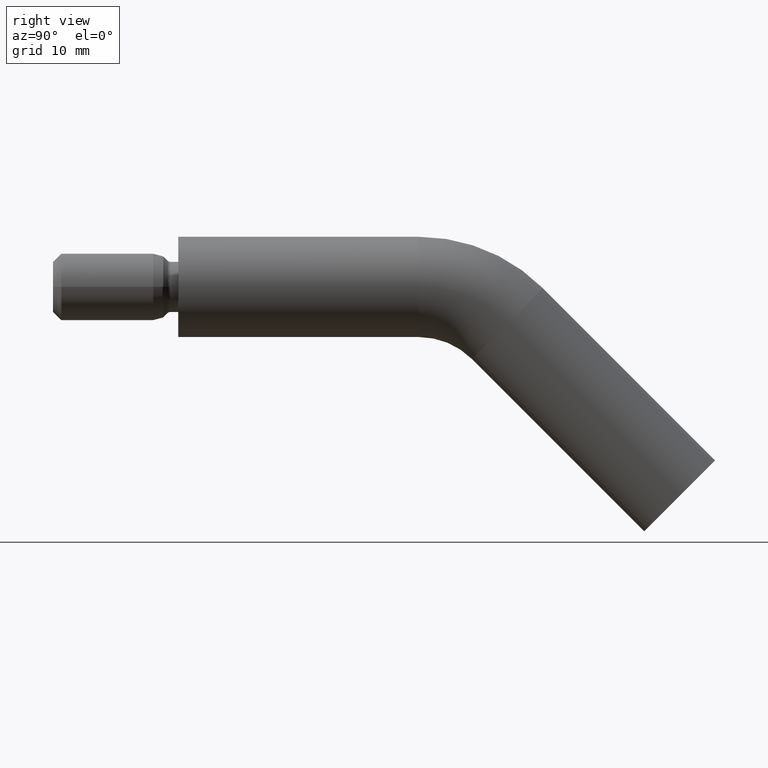
[diagram: clean part render]
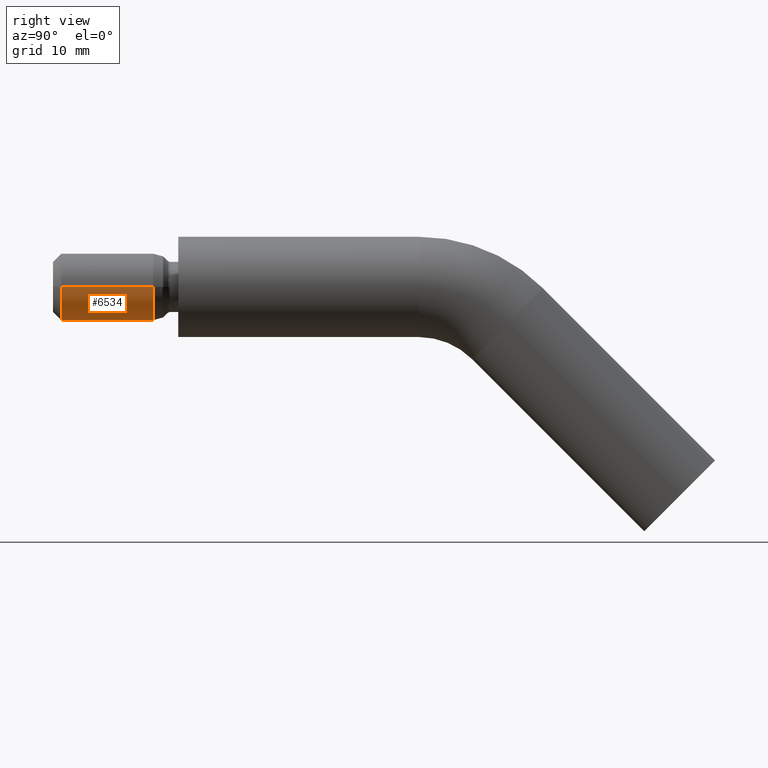
[diagram: same view with one face highlighted and labeled with its STEP entity id]
A machine part, right view. The second image highlights one B-rep face of the part: STEP entity #6534.
In plain terms, the highlighted cylindrical surface (edge-blend (fillet) strip) has radius 4 mm, axis along (-0, 1, -0).
Its self-contained STEP definition (entity closure, byte-faithful):
#126 = CARTESIAN_POINT ( 'NONE',  ( -4.000000000000000900, -4.625929269271487900E-016, 0.0000000000000000000 ) ) ;
#409 = DIRECTION ( 'NONE',  ( -1.156482317317871700E-016, 1.000000000000000000, -0.0000000000000000000 ) ) ;
#569 = VERTEX_POINT ( 'NONE', #5945 ) ;
#837 = VERTEX_POINT ( 'NONE', #13269 ) ;
#1022 = ORIENTED_EDGE ( 'NONE', *, *, #8787, .T. ) ;
#1367 = DIRECTION ( 'NONE',  ( -1.156482317317871500E-016, 1.000000000000000000, -0.0000000000000000000 ) ) ;
#1397 = VERTEX_POINT ( 'NONE', #8485 ) ;
#2435 = DIRECTION ( 'NONE',  ( -1.156482317317871500E-016, 1.000000000000000000, -0.0000000000000000000 ) ) ;
#2700 = AXIS2_PLACEMENT_3D ( 'NONE', #5977, #409, #8156 ) ;
#3107 = ORIENTED_EDGE ( 'NONE', *, *, #8716, .T. ) ;
#3608 = DIRECTION ( 'NONE',  ( -1.000000000000000000, -1.156482317317871700E-016, 0.0000000000000000000 ) ) ;
#3844 = DIRECTION ( 'NONE',  ( -1.000000000000000000, -1.084202172485503900E-016, 0.0000000000000000000 ) ) ;
#4961 = DIRECTION ( 'NONE',  ( -1.156482317317871500E-016, 1.000000000000000000, -0.0000000000000000000 ) ) ;
#5866 = DIRECTION ( 'NONE',  ( -1.156482317317871500E-016, 1.000000000000000000, -0.0000000000000000000 ) ) ;
#5945 = CARTESIAN_POINT ( 'NONE',  ( -4.000000000000001800, -3.000000000000000000, 0.0000000000000000000 ) ) ;
#5977 = CARTESIAN_POINT ( 'NONE',  ( 1.619075244245019200E-015, -13.99999999999999300, 0.0000000000000000000 ) ) ;
#6534 = ADVANCED_FACE ( 'NONE', ( #14312 ), #12452, .T. ) ;
#7571 = CIRCLE ( 'NONE', #2700, 4.000000000000000900 ) ;
#7888 = ORIENTED_EDGE ( 'NONE', *, *, #11909, .F. ) ;
#8021 = EDGE_LOOP ( 'NONE', ( #7888, #1022, #3107, #11052 ) ) ;
#8156 = DIRECTION ( 'NONE',  ( -1.000000000000000000, 0.0000000000000000000, 0.0000000000000000000 ) ) ;
#8485 = CARTESIAN_POINT ( 'NONE',  ( 4.000000000000002700, -13.99999999999999300, 4.898587196589414800E-016 ) ) ;
#8716 = EDGE_CURVE ( 'NONE', #14231, #569, #14104, .T. ) ;
#8787 = EDGE_CURVE ( 'NONE', #1397, #14231, #7571, .T. ) ;
#9504 = AXIS2_PLACEMENT_3D ( 'NONE', #13784, #4961, #3844 ) ;
#10341 = VECTOR ( 'NONE', #1367, 1000.000000000000000 ) ;
#10596 = VECTOR ( 'NONE', #5866, 1000.000000000000000 ) ;
#10630 = CARTESIAN_POINT ( 'NONE',  ( -3.999999999999999100, -13.99999999999999300, 0.0000000000000000000 ) ) ;
#11052 = ORIENTED_EDGE ( 'NONE', *, *, #11187, .F. ) ;
#11187 = EDGE_CURVE ( 'NONE', #837, #569, #11292, .T. ) ;
#11292 = CIRCLE ( 'NONE', #9504, 4.000000000000001800 ) ;
#11294 = CARTESIAN_POINT ( 'NONE',  ( 0.0000000000000000000, 0.0000000000000000000, 0.0000000000000000000 ) ) ;
#11649 = CARTESIAN_POINT ( 'NONE',  ( 4.000000000000000900, 4.625929269271487900E-016, 4.898587196589413800E-016 ) ) ;
#11909 = EDGE_CURVE ( 'NONE', #1397, #837, #13007, .T. ) ;
#12452 = CYLINDRICAL_SURFACE ( 'NONE', #12983, 4.000000000000000900 ) ;
#12983 = AXIS2_PLACEMENT_3D ( 'NONE', #11294, #2435, #3608 ) ;
#13007 = LINE ( 'NONE', #11649, #10596 ) ;
#13269 = CARTESIAN_POINT ( 'NONE',  ( 4.000000000000001800, -2.999999999999999100, 4.898587196589413800E-016 ) ) ;
#13784 = CARTESIAN_POINT ( 'NONE',  ( 3.469446951953613700E-016, -2.999999999999999600, 0.0000000000000000000 ) ) ;
#14104 = LINE ( 'NONE', #126, #10341 ) ;
#14231 = VERTEX_POINT ( 'NONE', #10630 ) ;
#14312 = FACE_OUTER_BOUND ( 'NONE', #8021, .T. ) ;